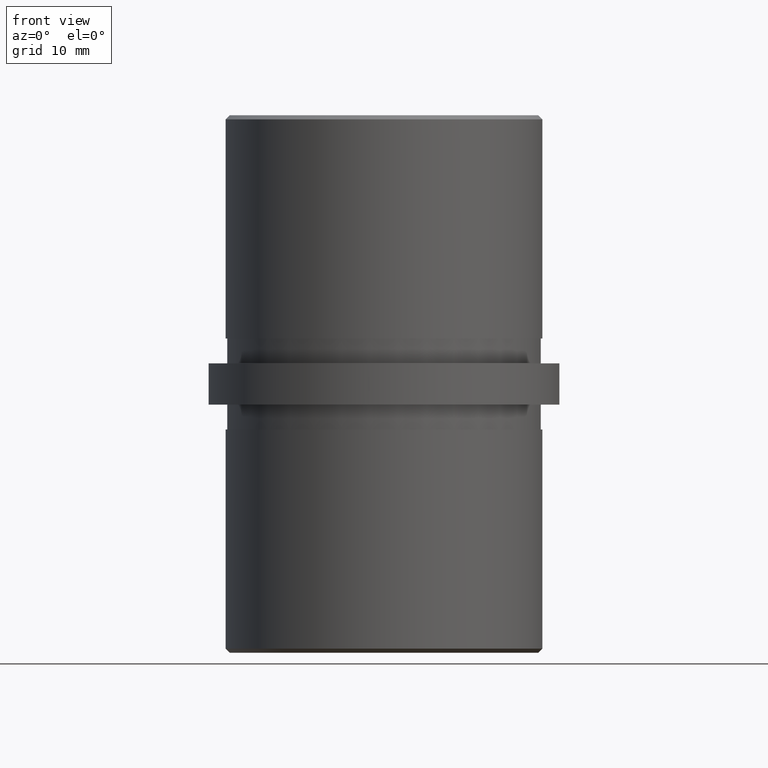
[diagram: clean part render]
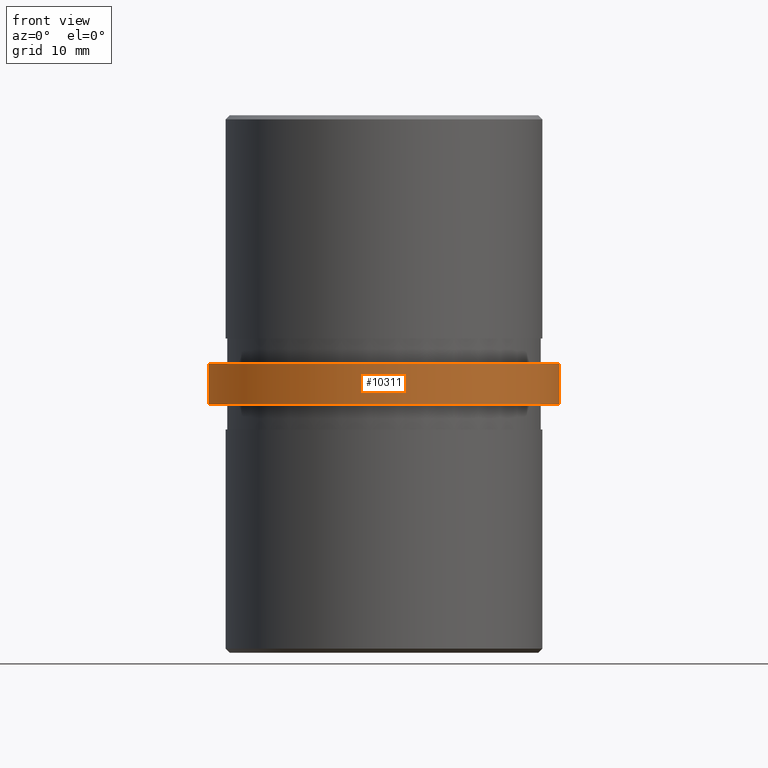
[diagram: same view with one face highlighted and labeled with its STEP entity id]
A machine part, front view. The second image highlights one B-rep face of the part: STEP entity #10311.
In plain terms, the highlighted cylindrical surface (partial cylindrical patch) has radius 21.2 mm, axis along (-0, -0, -1).
Its self-contained STEP definition (entity closure, byte-faithful):
#1064 = FACE_OUTER_BOUND ( 'NONE', #14544, .T. ) ;
#2121 = EDGE_CURVE ( 'NONE', #13329, #14579, #14972, .T. ) ;
#2196 = DIRECTION ( 'NONE',  ( 0.0000000000000000000, 0.0000000000000000000, 1.000000000000000000 ) ) ;
#2505 = ORIENTED_EDGE ( 'NONE', *, *, #18354, .T. ) ;
#2614 = CARTESIAN_POINT ( 'NONE',  ( 0.0000000000000000000, 0.0000000000000000000, 2.500000000000000000 ) ) ;
#3051 = AXIS2_PLACEMENT_3D ( 'NONE', #2614, #3977, #9863 ) ;
#3647 = ORIENTED_EDGE ( 'NONE', *, *, #2121, .T. ) ;
#3829 = CARTESIAN_POINT ( 'NONE',  ( 21.19999999999999900, 2.596251214192388800E-015, 2.500000000000000000 ) ) ;
#3977 = DIRECTION ( 'NONE',  ( -0.0000000000000000000, -0.0000000000000000000, -1.000000000000000000 ) ) ;
#5080 = CARTESIAN_POINT ( 'NONE',  ( 21.19999999999999900, 2.596251214192388800E-015, -2.500000000000000000 ) ) ;
#5258 = VERTEX_POINT ( 'NONE', #5080 ) ;
#5322 = ORIENTED_EDGE ( 'NONE', *, *, #12356, .F. ) ;
#5361 = DIRECTION ( 'NONE',  ( -0.0000000000000000000, -0.0000000000000000000, -1.000000000000000000 ) ) ;
#6010 = CARTESIAN_POINT ( 'NONE',  ( -21.19999999999999900, 0.0000000000000000000, 2.500000000000000000 ) ) ;
#6147 = VERTEX_POINT ( 'NONE', #3829 ) ;
#6245 = DIRECTION ( 'NONE',  ( 1.000000000000000000, 0.0000000000000000000, 0.0000000000000000000 ) ) ;
#7602 = CIRCLE ( 'NONE', #15374, 21.19999999999999900 ) ;
#7931 = CYLINDRICAL_SURFACE ( 'NONE', #3051, 21.19999999999999900 ) ;
#8533 = VECTOR ( 'NONE', #5361, 1000.000000000000000 ) ;
#9070 = CARTESIAN_POINT ( 'NONE',  ( 0.0000000000000000000, 0.0000000000000000000, -2.500000000000000000 ) ) ;
#9863 = DIRECTION ( 'NONE',  ( -1.000000000000000000, 0.0000000000000000000, 0.0000000000000000000 ) ) ;
#9913 = VECTOR ( 'NONE', #10450, 1000.000000000000000 ) ;
#10311 = ADVANCED_FACE ( 'NONE', ( #1064 ), #7931, .T. ) ;
#10450 = DIRECTION ( 'NONE',  ( -0.0000000000000000000, -0.0000000000000000000, -1.000000000000000000 ) ) ;
#12279 = CARTESIAN_POINT ( 'NONE',  ( -21.19999999999999900, 0.0000000000000000000, 2.500000000000000000 ) ) ;
#12356 = EDGE_CURVE ( 'NONE', #13329, #6147, #18895, .T. ) ;
#12917 = AXIS2_PLACEMENT_3D ( 'NONE', #18344, #2196, #18408 ) ;
#13329 = VERTEX_POINT ( 'NONE', #12279 ) ;
#14544 = EDGE_LOOP ( 'NONE', ( #14605, #5322, #3647, #2505 ) ) ;
#14579 = VERTEX_POINT ( 'NONE', #14779 ) ;
#14605 = ORIENTED_EDGE ( 'NONE', *, *, #18555, .F. ) ;
#14779 = CARTESIAN_POINT ( 'NONE',  ( -21.19999999999999900, 0.0000000000000000000, -2.500000000000000000 ) ) ;
#14972 = LINE ( 'NONE', #6010, #9913 ) ;
#15039 = DIRECTION ( 'NONE',  ( -0.0000000000000000000, -0.0000000000000000000, 1.000000000000000000 ) ) ;
#15374 = AXIS2_PLACEMENT_3D ( 'NONE', #9070, #15039, #6245 ) ;
#16322 = LINE ( 'NONE', #18541, #8533 ) ;
#18344 = CARTESIAN_POINT ( 'NONE',  ( 0.0000000000000000000, 0.0000000000000000000, 2.500000000000000000 ) ) ;
#18354 = EDGE_CURVE ( 'NONE', #14579, #5258, #7602, .T. ) ;
#18408 = DIRECTION ( 'NONE',  ( 1.000000000000000000, 0.0000000000000000000, 0.0000000000000000000 ) ) ;
#18541 = CARTESIAN_POINT ( 'NONE',  ( 21.19999999999999900, 2.596251214192388800E-015, 2.500000000000000000 ) ) ;
#18555 = EDGE_CURVE ( 'NONE', #6147, #5258, #16322, .T. ) ;
#18895 = CIRCLE ( 'NONE', #12917, 21.19999999999999900 ) ;